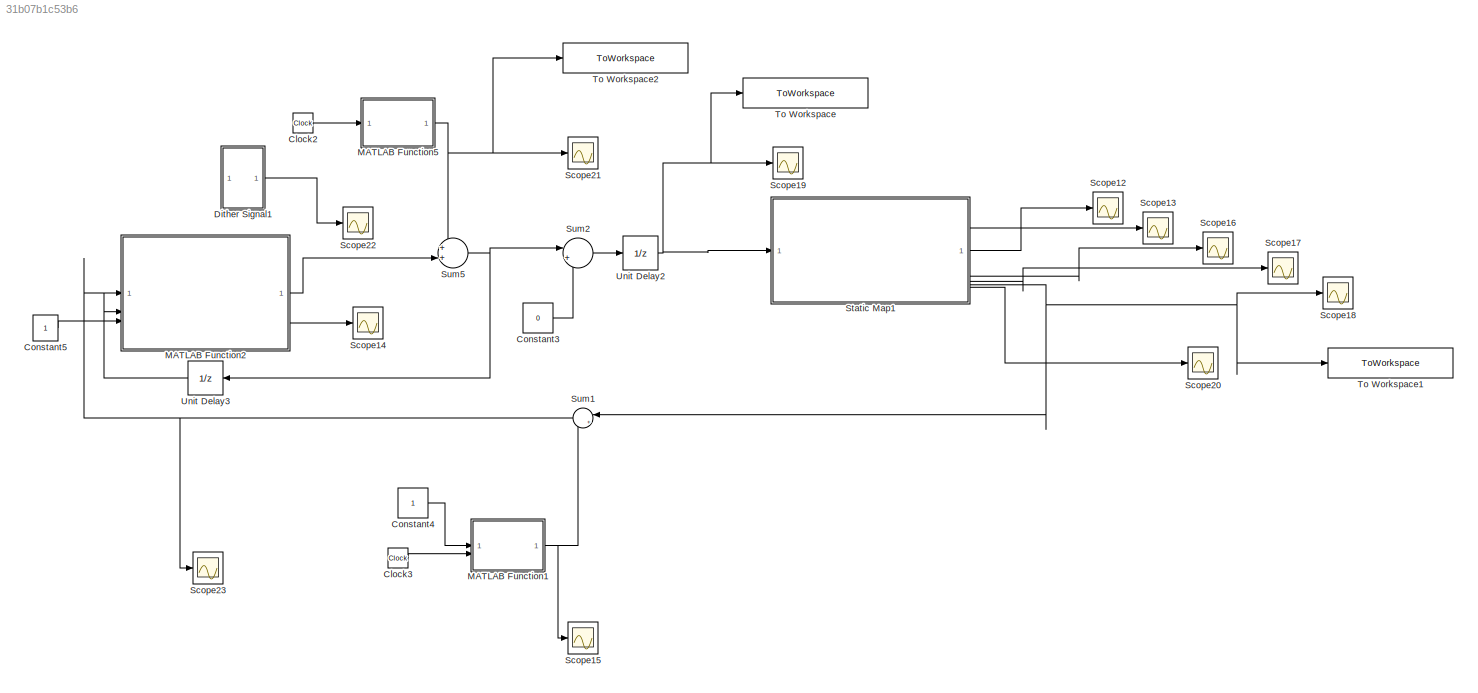
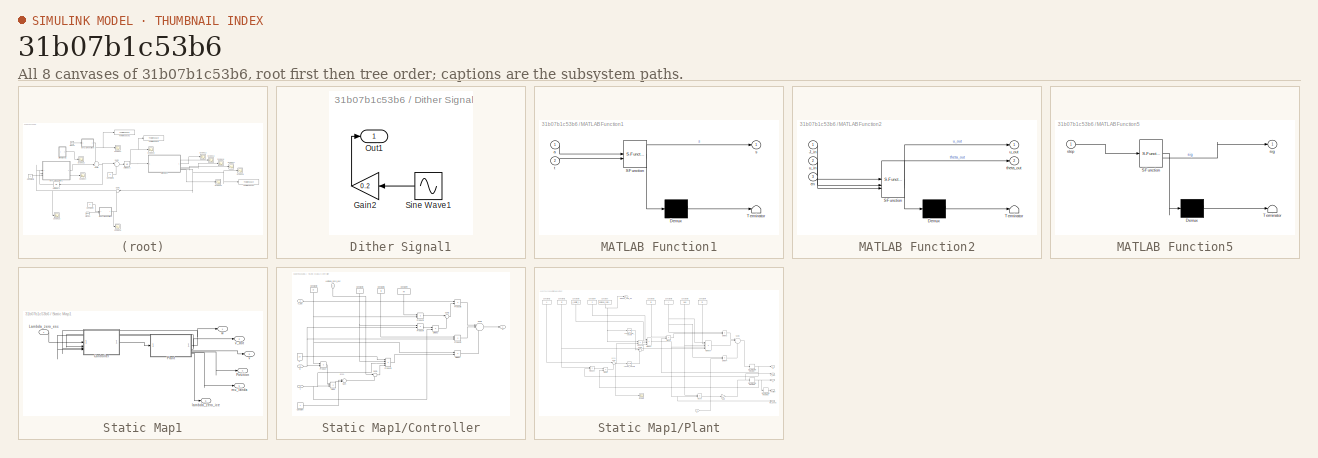
[diagram: thumbnail index - all 8 canvases of the model, root first then tree order]
MODEL slx_31b07b1c53b6
KIND model
CONFIG AbsTol = auto
CONFIG EnableMultiTasking = off
CONFIG FixedStep = 1
CONFIG MaxStep = auto
CONFIG MinStep = auto
CONFIG RelTol = 1e-3
CONFIG SampleTimeConstraint = Unconstrained
CONFIG SolverName = FixedStepDiscrete
CONFIG StartTime = 0.0
CONFIG StopTime = 2500
BLOCK [Clock] Clock2
BLOCK [Clock] Clock3
BLOCK [Constant] Constant3
  Value = 0
BLOCK [Constant] Constant4
BLOCK [Constant] Constant5
BLOCK [SubSystem] Dither Signal1
BLOCK [Gain] Dither Signal1/Gain2
  Gain = 0.2
  NameLocation = top
BLOCK [Outport] Dither Signal1/Out1
BLOCK [Sin] Dither Signal1/Sine Wave1
  Frequency = 30
  NameLocation = top
  SampleTime = 0
BLOCK [SubSystem] MATLAB Function1
  ErrorFcn = Stateflow.Translate.translate
  LibrarySourceBlock = simulink/User-Defined\nFunctions/MATLAB Function
  PermitHierarchicalResolution = ExplicitOnly
  SFBlockType = MATLAB Function
  TreatAsAtomicUnit = on
BLOCK [Demux] MATLAB Function1/ Demux 
  Outputs = 1
BLOCK [S-Function] MATLAB Function1/ SFunction 
  EnableBusSupport = on
  FunctionName = sf_sfun
  PortCounts = [2 2]
  SFcnIsStateOwnerBlock = off
  SFunctionDeploymentMode = off
  Tag = Stateflow S-Function 2
BLOCK [Terminator] MATLAB Function1/ Terminator 
BLOCK [Inport] MATLAB Function1/a
BLOCK [Outport] MATLAB Function1/s
BLOCK [Inport] MATLAB Function1/t
  Port = 2
BLOCK [SubSystem] MATLAB Function2
  ErrorFcn = Stateflow.Translate.translate
  LibrarySourceBlock = simulink/User-Defined\nFunctions/MATLAB Function
  PermitHierarchicalResolution = ExplicitOnly
  SFBlockType = MATLAB Function
  TreatAsAtomicUnit = on
BLOCK [Demux] MATLAB Function2/ Demux 
  Outputs = 1
BLOCK [S-Function] MATLAB Function2/ SFunction 
  EnableBusSupport = on
  FunctionName = sf_sfun
  Parameters = Nc
  PortCounts = [3 3]
  SFcnIsStateOwnerBlock = off
  SFunctionDeploymentMode = off
  Tag = Stateflow S-Function 3
BLOCK [Terminator] MATLAB Function2/ Terminator 
BLOCK [Inport] MATLAB Function2/J_in
BLOCK [Inport] MATLAB Function2/en
  Port = 3
BLOCK [Outport] MATLAB Function2/theta_out
  Port = 2
BLOCK [Inport] MATLAB Function2/u_in
  Port = 2
BLOCK [Outport] MATLAB Function2/u_out
BLOCK [SubSystem] MATLAB Function5
  ErrorFcn = Stateflow.Translate.translate
  LibrarySourceBlock = simulink/User-Defined\nFunctions/MATLAB Function
  PermitHierarchicalResolution = ExplicitOnly
  SFBlockType = MATLAB Function
  TreatAsAtomicUnit = on
BLOCK [Demux] MATLAB Function5/ Demux 
  Outputs = 1
BLOCK [S-Function] MATLAB Function5/ SFunction 
  EnableBusSupport = on
  FunctionName = sf_sfun
  PortCounts = [1 2]
  SFcnIsStateOwnerBlock = off
  SFunctionDeploymentMode = off
  Tag = Stateflow S-Function 6
BLOCK [Terminator] MATLAB Function5/ Terminator 
BLOCK [Outport] MATLAB Function5/sig
BLOCK [Inport] MATLAB Function5/step
BLOCK [Scope] Scope12
  Floating = off
  NumInputPorts = 1
  ScopeSpecificationString = Simulink.scopes.TimeScopeBlockCfg('CurrentConfiguration', extmgr.ConfigurationSet(extmgr.Configuration('Core','General UI',true),extmgr.Configuration('Core','Source UI',true),extmgr.Configuration('Sources','WiredSimulink',true,'DataLoggingVariableName','ScopeData13'),extmgr.Configuration('Visuals','Time Domain',true,'SerializedDisplays',{struct('MinYLimReal','-22.44704','MaxYLimReal','144.63867','...<+1408ch>
BLOCK [Scope] Scope13
  Floating = off
  NumInputPorts = 1
  ScopeSpecificationString = Simulink.scopes.TimeScopeBlockCfg('CurrentConfiguration', extmgr.ConfigurationSet(extmgr.Configuration('Core','General UI',true),extmgr.Configuration('Core','Source UI',true),extmgr.Configuration('Sources','WiredSimulink',true,'DataLoggingVariableName','ScopeData14'),extmgr.Configuration('Visuals','Time Domain',true,'SerializedDisplays',{struct('MinYLimReal','-10.95602','MaxYLimReal','10.42456','Y...<+1378ch>
BLOCK [Scope] Scope14
  Floating = off
  NumInputPorts = 1
  ScopeSpecificationString = Simulink.scopes.TimeScopeBlockCfg('CurrentConfiguration', extmgr.ConfigurationSet(extmgr.Configuration('Core','General UI',true),extmgr.Configuration('Core','Source UI',true),extmgr.Configuration('Sources','WiredSimulink',true,'DataLoggingVariableName','ScopeData15'),extmgr.Configuration('Visuals','Time Domain',true,'SerializedDisplays',{struct('MinYLimReal','-0.59159','MaxYLimReal','0.92595','YLa...<+2041ch>
BLOCK [Scope] Scope15
  Floating = off
  NumInputPorts = 1
  ScopeSpecificationString = Simulink.scopes.TimeScopeBlockCfg('CurrentConfiguration', extmgr.ConfigurationSet(extmgr.Configuration('Core','General UI',true),extmgr.Configuration('Core','Source UI',true),extmgr.Configuration('Sources','WiredSimulink',true,'DataLoggingVariableName','ScopeData16'),extmgr.Configuration('Visuals','Time Domain',true,'SerializedDisplays',{struct('MinYLimReal','-0.25','MaxYLimReal','2.25','YLabelRea...<+1382ch>
BLOCK [Scope] Scope16
  Floating = off
  NumInputPorts = 1
  ScopeSpecificationString = Simulink.scopes.TimeScopeBlockCfg('CurrentConfiguration', extmgr.ConfigurationSet(extmgr.Configuration('Core','General UI',true),extmgr.Configuration('Core','Source UI',true),extmgr.Configuration('Sources','WiredSimulink',true,'DataLoggingVariableName','ScopeData17'),extmgr.Configuration('Visuals','Time Domain',true,'SerializedDisplays',{struct('MinYLimReal','-27.49333','MaxYLimReal','38.86253','Y...<+1406ch>
BLOCK [Scope] Scope17
  Floating = off
  NumInputPorts = 1
  ScopeSpecificationString = Simulink.scopes.TimeScopeBlockCfg('CurrentConfiguration', extmgr.ConfigurationSet(extmgr.Configuration('Core','General UI',true),extmgr.Configuration('Core','Source UI',true),extmgr.Configuration('Sources','WiredSimulink',true,'DataLoggingVariableName','ScopeData18'),extmgr.Configuration('Visuals','Time Domain',true,'SerializedDisplays',{struct('MinYLimReal','-98.45975','MaxYLimReal','1047.27244',...<+1458ch>
BLOCK [Scope] Scope18
  Floating = off
  NumInputPorts = 1
  ScopeSpecificationString = Simulink.scopes.TimeScopeBlockCfg('CurrentConfiguration', extmgr.ConfigurationSet(extmgr.Configuration('Core','General UI',true),extmgr.Configuration('Core','Source UI',true),extmgr.Configuration('Sources','WiredSimulink',true,'DataLoggingVariableName','ScopeData19'),extmgr.Configuration('Visuals','Time Domain',true,'SerializedDisplays',{struct('MinYLimReal','-0.27156','MaxYLimReal','0.36351','YLa...<+1444ch>
BLOCK [Scope] Scope19
  Floating = off
  NumInputPorts = 1
  ScopeSpecificationString = Simulink.scopes.TimeScopeBlockCfg('CurrentConfiguration', extmgr.ConfigurationSet(extmgr.Configuration('Core','General UI',true),extmgr.Configuration('Core','Source UI',true),extmgr.Configuration('Sources','WiredSimulink',true,'DataLoggingVariableName','ScopeData20'),extmgr.Configuration('Visuals','Time Domain',true,'SerializedDisplays',{struct('MinYLimReal','-0.30439','MaxYLimReal','1.3126','YLab...<+1438ch>
BLOCK [Scope] Scope20
  Floating = off
  NumInputPorts = 1
  ScopeSpecificationString = Simulink.scopes.TimeScopeBlockCfg('CurrentConfiguration', extmgr.ConfigurationSet(extmgr.Configuration('Core','General UI',true),extmgr.Configuration('Core','Source UI',true),extmgr.Configuration('Sources','WiredSimulink',true,'DataLoggingVariableName','ScopeData21'),extmgr.Configuration('Visuals','Time Domain',true,'SerializedDisplays',{struct('MinYLimReal','0.3','MaxYLimReal','0.5','YLabelReal',...<+1426ch>
BLOCK [Scope] Scope21
  Floating = off
  NumInputPorts = 1
  ScopeSpecificationString = Simulink.scopes.TimeScopeBlockCfg('CurrentConfiguration', extmgr.ConfigurationSet(extmgr.Configuration('Core','General UI',true),extmgr.Configuration('Core','Source UI',true),extmgr.Configuration('Sources','WiredSimulink',true,'DataLoggingVariableName','ScopeData22'),extmgr.Configuration('Visuals','Time Domain',true,'SerializedDisplays',{struct('MinYLimReal','-0.09909','MaxYLimReal','0.0246','YLab...<+1426ch>
BLOCK [Scope] Scope22
  Floating = off
  NumInputPorts = 1
  ScopeSpecificationString = Simulink.scopes.TimeScopeBlockCfg('CurrentConfiguration', extmgr.ConfigurationSet(extmgr.Configuration('Core','General UI',true),extmgr.Configuration('Core','Source UI',true),extmgr.Configuration('Sources','WiredSimulink',true,'DataLoggingVariableName','ScopeData23'),extmgr.Configuration('Visuals','Time Domain',true,'SerializedDisplays',{struct('MinYLimReal','-0.28834','MaxYLimReal','1.802','YLabe...<+1395ch>
BLOCK [Scope] Scope23
  Floating = off
  NumInputPorts = 1
  ScopeSpecificationString = Simulink.scopes.TimeScopeBlockCfg('CurrentConfiguration', extmgr.ConfigurationSet(extmgr.Configuration('Core','General UI',true),extmgr.Configuration('Core','Source UI',true),extmgr.Configuration('Sources','WiredSimulink',true,'DataLoggingVariableName','ScopeData24'),extmgr.Configuration('Visuals','Time Domain',true,'SerializedDisplays',{struct('MinYLimReal','-2.06265','MaxYLimReal','0.11682','YLa...<+1415ch>
BLOCK [SubSystem] Static Map1
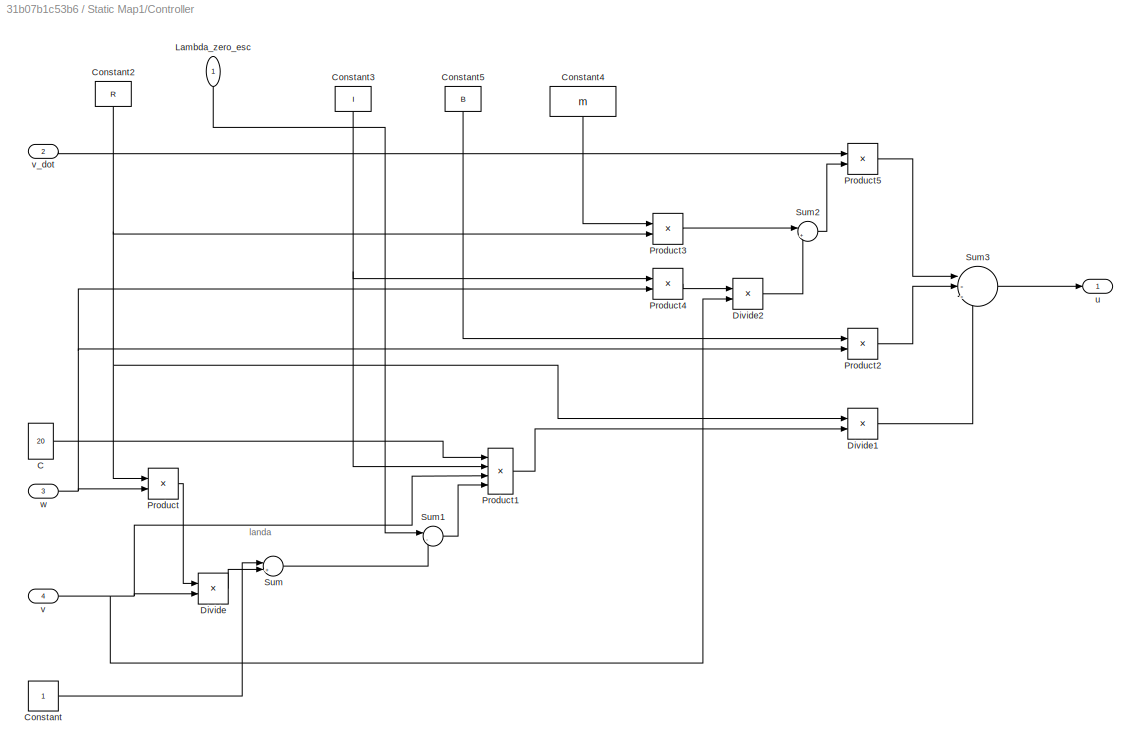
BLOCK [SubSystem] Static Map1/Controller
BLOCK [Constant] Static Map1/Controller/C
  Value = 20
BLOCK [Constant] Static Map1/Controller/Constant
BLOCK [Constant] Static Map1/Controller/Constant2
  NameLocation = left
  Value = R
BLOCK [Constant] Static Map1/Controller/Constant3
  NameLocation = left
  Value = I
BLOCK [Constant] Static Map1/Controller/Constant4
  NameLocation = left
  Value = m
BLOCK [Constant] Static Map1/Controller/Constant5
  NameLocation = left
  Value = B
BLOCK [Product] Static Map1/Controller/Divide
  Inputs = */
BLOCK [Product] Static Map1/Controller/Divide1
  Inputs = /*
BLOCK [Product] Static Map1/Controller/Divide2
  Inputs = */
BLOCK [Inport] Static Map1/Controller/Lambda_zero_esc
  NameLocation = left
BLOCK [Product] Static Map1/Controller/Product
BLOCK [Product] Static Map1/Controller/Product1
  Inputs = 4
BLOCK [Product] Static Map1/Controller/Product2
BLOCK [Product] Static Map1/Controller/Product3
BLOCK [Product] Static Map1/Controller/Product4
BLOCK [Product] Static Map1/Controller/Product5
BLOCK [Sum] Static Map1/Controller/Sum
  Inputs = |+-
BLOCK [Sum] Static Map1/Controller/Sum1
  Inputs = |-+
BLOCK [Sum] Static Map1/Controller/Sum2
  Inputs = |++
BLOCK [Sum] Static Map1/Controller/Sum3
  Inputs = |---
BLOCK [Outport] Static Map1/Controller/u
BLOCK [Inport] Static Map1/Controller/v
  IconDisplay = Port number and signal name
  Port = 4
BLOCK [Inport] Static Map1/Controller/v_dot
  Port = 2
BLOCK [Inport] Static Map1/Controller/w
  Port = 3
BLOCK [Inport] Static Map1/Lambda_zero_esc
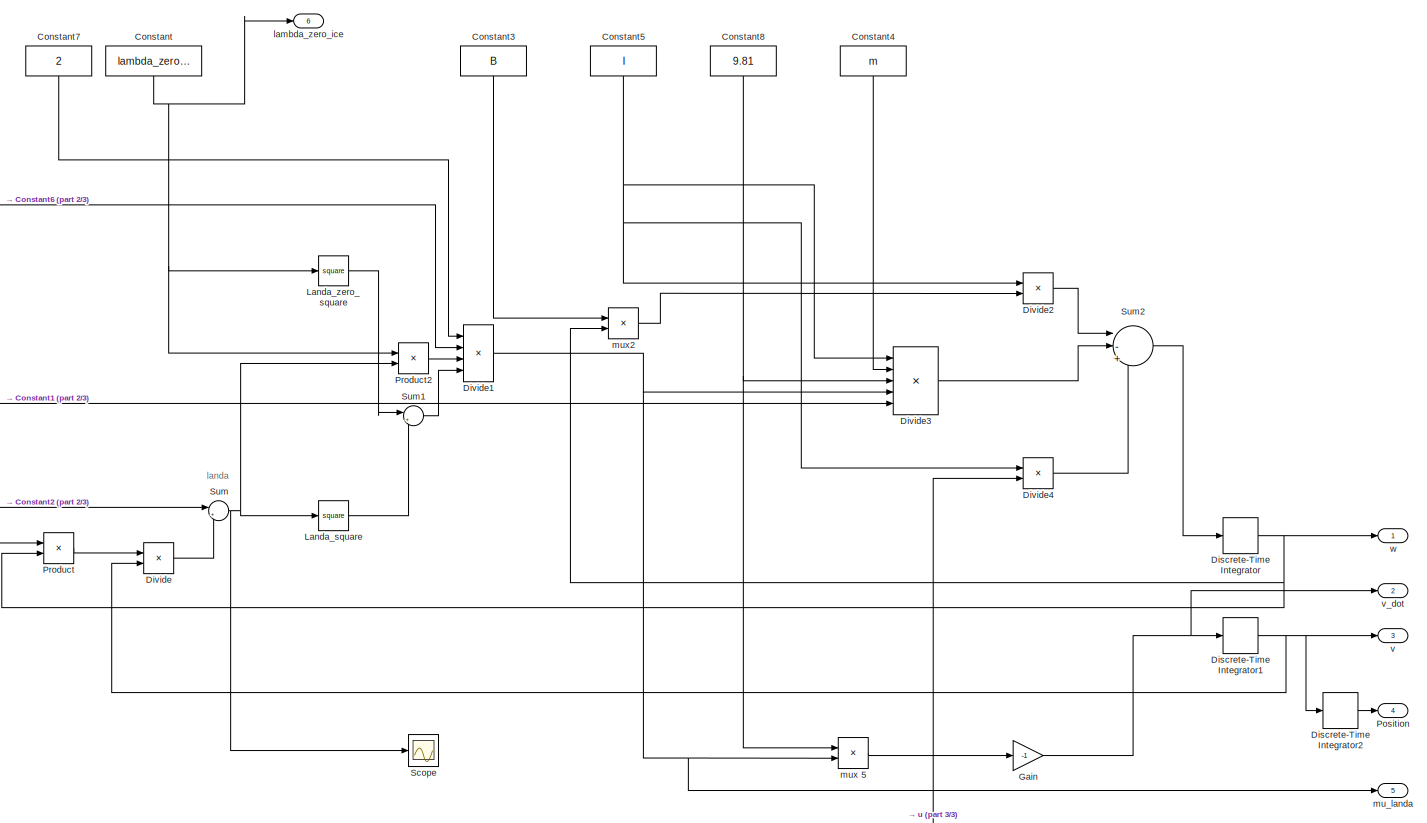
[diagram: Static Map1/Plant - part 1/3, most of the canvas]
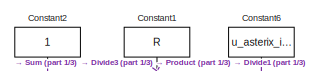
[diagram: Static Map1/Plant - part 2/3, top left region]
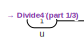
[diagram: Static Map1/Plant - part 3/3, bottom center region]
BLOCK [SubSystem] Static Map1/Plant
BLOCK [Constant] Static Map1/Plant/Constant
  NameLocation = left
  Value = lambda_zero_ice
BLOCK [Constant] Static Map1/Plant/Constant1
  NameLocation = left
  Value = R
BLOCK [Constant] Static Map1/Plant/Constant2
  NameLocation = left
BLOCK [Constant] Static Map1/Plant/Constant3
  NameLocation = left
  Value = B
BLOCK [Constant] Static Map1/Plant/Constant4
  NameLocation = left
  Value = m
BLOCK [Constant] Static Map1/Plant/Constant5
  NameLocation = left
  Value = I
BLOCK [Constant] Static Map1/Plant/Constant6
  NameLocation = left
  Value = u_asterix_ice
BLOCK [Constant] Static Map1/Plant/Constant7
  NameLocation = left
  Value = 2
BLOCK [Constant] Static Map1/Plant/Constant8
  NameLocation = left
  Value = 9.81
BLOCK [DiscreteIntegrator] Static Map1/Plant/Discrete-Time Integrator
  ICPrevOutput = DiscIntNeverNeededParam
  ICPrevScaledInput = DiscIntNeverNeededParam
  InitialCondition = 121.212
  InitialConditionSetting = Auto
  IntegratorMethod = Integration: Trapezoidal
  SampleTime = -1
BLOCK [DiscreteIntegrator] Static Map1/Plant/Discrete-Time Integrator1
  ICPrevOutput = DiscIntNeverNeededParam
  ICPrevScaledInput = DiscIntNeverNeededParam
  InitialCondition = 1200/36
  InitialConditionSetting = Auto
  IntegratorMethod = Integration: Trapezoidal
  SampleTime = -1
BLOCK [DiscreteIntegrator] Static Map1/Plant/Discrete-Time Integrator2
  ICPrevOutput = DiscIntNeverNeededParam
  ICPrevScaledInput = DiscIntNeverNeededParam
  InitialConditionSetting = Auto
  IntegratorMethod = Integration: Trapezoidal
  SampleTime = -1
BLOCK [Product] Static Map1/Plant/Divide
  Inputs = */
BLOCK [Product] Static Map1/Plant/Divide1
  Inputs = ***/
BLOCK [Product] Static Map1/Plant/Divide2
  Inputs = /*
BLOCK [Product] Static Map1/Plant/Divide3
  Inputs = /****
BLOCK [Product] Static Map1/Plant/Divide4
  Inputs = /*
BLOCK [Gain] Static Map1/Plant/Gain
  Gain = -1
BLOCK [Math] Static Map1/Plant/Landa_square 
  Operator = square
  SignedPower = on
BLOCK [Math] Static Map1/Plant/Landa_zero_square 
  Operator = square
  SignedPower = on
BLOCK [Outport] Static Map1/Plant/Position
  Port = 4
BLOCK [Product] Static Map1/Plant/Product
BLOCK [Product] Static Map1/Plant/Product2
BLOCK [Scope] Static Map1/Plant/Scope
  Floating = off
  NumInputPorts = 1
  ScopeSpecificationString = C++SS(StrPVP('Location','[1, 49, 1367, 727]'),StrPVP('Open','off'),MxPVP('AxesTitles',54,'struct(''axes1'',''%<SignalLabel>'')'),MxPVP('ScopeGraphics',57,'struct(''FigureColor'',''[0.5 0.5 0.5]'',''AxesColor'',''[0 0 0]'',''AxesTickColor'',''[1 1 1]'',''LineColors'',''[1 1 0;1 0 1;0 1 1;1 0 0;0 1 0;0 0 1]'',''LineStyles'',''-|-|-|-|-|-'',''LineWidths'',''[0.5 0.5 0.5 0.5 0.5 0.5]'',''MarkerStyles'...<+304ch>
BLOCK [Sum] Static Map1/Plant/Sum
  Inputs = |+-
BLOCK [Sum] Static Map1/Plant/Sum1
  Inputs = |++
BLOCK [Sum] Static Map1/Plant/Sum2
  Inputs = |-+-
BLOCK [Outport] Static Map1/Plant/lambda_zero_ice
  Port = 6
BLOCK [Outport] Static Map1/Plant/mu_landa
  Port = 5
BLOCK [Product] Static Map1/Plant/mux 5
BLOCK [Product] Static Map1/Plant/mux2
BLOCK [Inport] Static Map1/Plant/u
BLOCK [Outport] Static Map1/Plant/v
  Port = 3
BLOCK [Outport] Static Map1/Plant/v_dot
  Port = 2
BLOCK [Outport] Static Map1/Plant/w
BLOCK [Outport] Static Map1/Position
  Port = 4
BLOCK [Outport] Static Map1/lambda_zero_ice
  Port = 6
BLOCK [Outport] Static Map1/mu_landa
  Port = 5
BLOCK [Outport] Static Map1/v
  Port = 3
BLOCK [Outport] Static Map1/v_dot
  Port = 2
BLOCK [Outport] Static Map1/w
BLOCK [Sum] Sum1
  Inputs = |+-
  NameLocation = top
BLOCK [Sum] Sum2
  Inputs = |++
BLOCK [Sum] Sum5
  Inputs = ++|
BLOCK [ToWorkspace] To Workspace
  FixptAsFi = on
  MaxDataPoints = inf
  SampleTime = -1
  SaveFormat = Timeseries
  VariableName = lambda_zero_esc_ice
BLOCK [ToWorkspace] To Workspace1
  FixptAsFi = on
  MaxDataPoints = inf
  SampleTime = -1
  SaveFormat = Timeseries
  VariableName = y_esc_ice
BLOCK [ToWorkspace] To Workspace2
  FixptAsFi = on
  MaxDataPoints = inf
  SampleTime = -1
  SaveFormat = Timeseries
  VariableName = Dither_esc_ice
BLOCK [UnitDelay] Unit Delay2
  HasFrameUpgradeWarning = on
  InitialCondition = 0.2
  SampleTime = -1
BLOCK [UnitDelay] Unit Delay3
  HasFrameUpgradeWarning = on
  SampleTime = -1
ANNOTATION Static Map1/Controller: landa
ANNOTATION Static Map1/Plant: landa
LINE Clock2:1 -> MATLAB Function5:1
LINE Clock3:1 -> MATLAB Function1:2
LINE Constant3:1 -> Sum2:2
LINE Constant4:1 -> MATLAB Function1:1
LINE Constant5:1 -> MATLAB Function2:3
LINE Dither Signal1/Gain2:1 -> Dither Signal1/Out1:1
LINE Dither Signal1/Sine Wave1:1 -> Dither Signal1/Gain2:1
LINE Dither Signal1:1 -> Scope22:1
NET MATLAB Function1:1 -> Scope15:1, Sum1:2
LINE MATLAB Function2:1 -> Sum5:2
LINE MATLAB Function2:2 -> Scope14:1
NET MATLAB Function5:1 -> Scope21:1, Sum5:1, To Workspace2:1
LINE Static Map1/Controller/C:1 -> Static Map1/Controller/Product1:1
NET Static Map1/Controller/Constant2:1 -> Static Map1/Controller/Divide1:1, Static Map1/Controller/Product3:2, Static Map1/Controller/Product:1
NET Static Map1/Controller/Constant3:1 -> Static Map1/Controller/Product1:2, Static Map1/Controller/Product4:1
LINE Static Map1/Controller/Constant4:1 -> Static Map1/Controller/Product3:1
LINE Static Map1/Controller/Constant5:1 -> Static Map1/Controller/Product2:1
LINE Static Map1/Controller/Constant:1 -> Static Map1/Controller/Sum:1
LINE Static Map1/Controller/Divide1:1 -> Static Map1/Controller/Sum3:3
LINE Static Map1/Controller/Divide2:1 -> Static Map1/Controller/Sum2:2
LINE Static Map1/Controller/Divide:1 -> Static Map1/Controller/Sum:2
LINE Static Map1/Controller/Lambda_zero_esc:1 -> Static Map1/Controller/Sum1:1
LINE Static Map1/Controller/Product1:1 -> Static Map1/Controller/Divide1:2
LINE Static Map1/Controller/Product2:1 -> Static Map1/Controller/Sum3:2
LINE Static Map1/Controller/Product3:1 -> Static Map1/Controller/Sum2:1
LINE Static Map1/Controller/Product4:1 -> Static Map1/Controller/Divide2:1
LINE Static Map1/Controller/Product5:1 -> Static Map1/Controller/Sum3:1
LINE Static Map1/Controller/Product:1 -> Static Map1/Controller/Divide:1
LINE Static Map1/Controller/Sum1:1 -> Static Map1/Controller/Product1:4
LINE Static Map1/Controller/Sum2:1 -> Static Map1/Controller/Product5:2
LINE Static Map1/Controller/Sum3:1 -> Static Map1/Controller/u:1
LINE Static Map1/Controller/Sum:1 -> Static Map1/Controller/Sum1:2
NET Static Map1/Controller/v:1 -> Static Map1/Controller/Divide2:2, Static Map1/Controller/Divide:2, Static Map1/Controller/Product1:3
LINE Static Map1/Controller/v_dot:1 -> Static Map1/Controller/Product5:1
NET Static Map1/Controller/w:1 -> Static Map1/Controller/Product2:2, Static Map1/Controller/Product4:2, Static Map1/Controller/Product:2
LINE Static Map1/Controller:1 -> Static Map1/Plant:1
LINE Static Map1/Lambda_zero_esc:1 -> Static Map1/Controller:1
NET Static Map1/Plant/Constant1:1 -> Static Map1/Plant/Divide3:5, Static Map1/Plant/Product:1
LINE Static Map1/Plant/Constant2:1 -> Static Map1/Plant/Sum:1
LINE Static Map1/Plant/Constant3:1 -> Static Map1/Plant/mux2:1
LINE Static Map1/Plant/Constant4:1 -> Static Map1/Plant/Divide3:2
NET Static Map1/Plant/Constant5:1 -> Static Map1/Plant/Divide2:1, Static Map1/Plant/Divide3:1, Static Map1/Plant/Divide4:1
LINE Static Map1/Plant/Constant6:1 -> Static Map1/Plant/Divide1:2
LINE Static Map1/Plant/Constant7:1 -> Static Map1/Plant/Divide1:1
NET Static Map1/Plant/Constant8:1 -> Static Map1/Plant/Divide3:3, Static Map1/Plant/mux 5:1
NET Static Map1/Plant/Constant:1 -> Static Map1/Plant/Landa_zero_square :1, Static Map1/Plant/Product2:1, Static Map1/Plant/lambda_zero_ice:1
NET Static Map1/Plant/Discrete-Time Integrator1:1 -> Static Map1/Plant/Discrete-Time Integrator2:1, Static Map1/Plant/Divide:2, Static Map1/Plant/v:1
LINE Static Map1/Plant/Discrete-Time Integrator2:1 -> Static Map1/Plant/Position:1
NET Static Map1/Plant/Discrete-Time Integrator:1 -> Static Map1/Plant/Product:2, Static Map1/Plant/mux2:2, Static Map1/Plant/w:1
NET Static Map1/Plant/Divide1:1 -> Static Map1/Plant/Divide3:4, Static Map1/Plant/mu_landa:1, Static Map1/Plant/mux 5:2
LINE Static Map1/Plant/Divide2:1 -> Static Map1/Plant/Sum2:1
LINE Static Map1/Plant/Divide3:1 -> Static Map1/Plant/Sum2:2
LINE Static Map1/Plant/Divide4:1 -> Static Map1/Plant/Sum2:3
LINE Static Map1/Plant/Divide:1 -> Static Map1/Plant/Sum:2
NET Static Map1/Plant/Gain:1 -> Static Map1/Plant/Discrete-Time Integrator1:1, Static Map1/Plant/v_dot:1
LINE Static Map1/Plant/Landa_square :1 -> Static Map1/Plant/Sum1:2
LINE Static Map1/Plant/Landa_zero_square :1 -> Static Map1/Plant/Sum1:1
LINE Static Map1/Plant/Product2:1 -> Static Map1/Plant/Divide1:3
LINE Static Map1/Plant/Product:1 -> Static Map1/Plant/Divide:1
LINE Static Map1/Plant/Sum1:1 -> Static Map1/Plant/Divide1:4
LINE Static Map1/Plant/Sum2:1 -> Static Map1/Plant/Discrete-Time Integrator:1
NET Static Map1/Plant/Sum:1 -> Static Map1/Plant/Landa_square :1, Static Map1/Plant/Product2:2, Static Map1/Plant/Scope:1
LINE Static Map1/Plant/mux 5:1 -> Static Map1/Plant/Gain:1
LINE Static Map1/Plant/mux2:1 -> Static Map1/Plant/Divide2:2
LINE Static Map1/Plant/u:1 -> Static Map1/Plant/Divide4:2
NET Static Map1/Plant:1 -> Static Map1/Controller:3, Static Map1/w:1
NET Static Map1/Plant:2 -> Static Map1/Controller:2, Static Map1/v_dot:1
NET Static Map1/Plant:3 -> Static Map1/Controller:4, Static Map1/v:1
LINE Static Map1/Plant:4 -> Static Map1/Position:1
LINE Static Map1/Plant:5 -> Static Map1/mu_landa:1
LINE Static Map1/Plant:6 -> Static Map1/lambda_zero_ice:1
LINE Static Map1:1 -> Scope12:1
LINE Static Map1:2 -> Scope13:1
LINE Static Map1:3 -> Scope16:1
LINE Static Map1:4 -> Scope17:1
NET Static Map1:5 -> Scope18:1, Sum1:1, To Workspace1:1
LINE Static Map1:6 -> Scope20:1
NET Sum1:1 -> MATLAB Function2:1, Scope23:1
LINE Sum2:1 -> Unit Delay2:1
NET Sum5:1 -> Sum2:1, Unit Delay3:1
NET Unit Delay2:1 -> Scope19:1, Static Map1:1, To Workspace:1
LINE Unit Delay3:1 -> MATLAB Function2:2
note: NET lines group one-source signal fan-out (src -> all destinations, sorted); 1:1 wires keep LINE
CHART MATLAB Function1 states=1 transitions=1
  STATE_LABEL 'eML_blk_kernel()'
  STATE_LABEL 'SCRIPT:\nfunction s = fcn(a,t)\n\ns = a*exp(0*t);\nend\n'
CHART MATLAB Function2 states=1 transitions=1
  STATE_LABEL 'eML_blk_kernel()'
  STATE_LABEL 'SCRIPT:\nfunction [u_out, theta_out] = RCAC_ESC(J_in, u_in, en, Nc)\n\npersistent Grad_Est DDRCAC_Cont uouttemp thetaouttemp opts\n\nif isempty(uouttemp)\n    opts = RCAC_ESC_KF_SISO_define_opts();\n    Grad_Est = grad_est_KF(opts.lu, opts.lz, opts.indi, opts.P0_G, opts.Q, opts.R);\n    DDRCAC_Cont = DDRCAC(opts.lu, opts.lz, opts.Nc, opts.P0_C, opts.Ru, opts.nu);\n    uouttemp = 0.0;\n    thetaouttemp = zer...<+541ch>'
CHART MATLAB Function5 states=1 transitions=1
  STATE_LABEL 'eML_blk_kernel()'
  STATE_LABEL 'SCRIPT:\nfunction sig = Perturbation(step)\n    sig = PertFcnABS_Ice_SISO(step);\nend'
CHART  states=0 transitions=0
CHART  states=0 transitions=0
CHART  states=0 transitions=0
